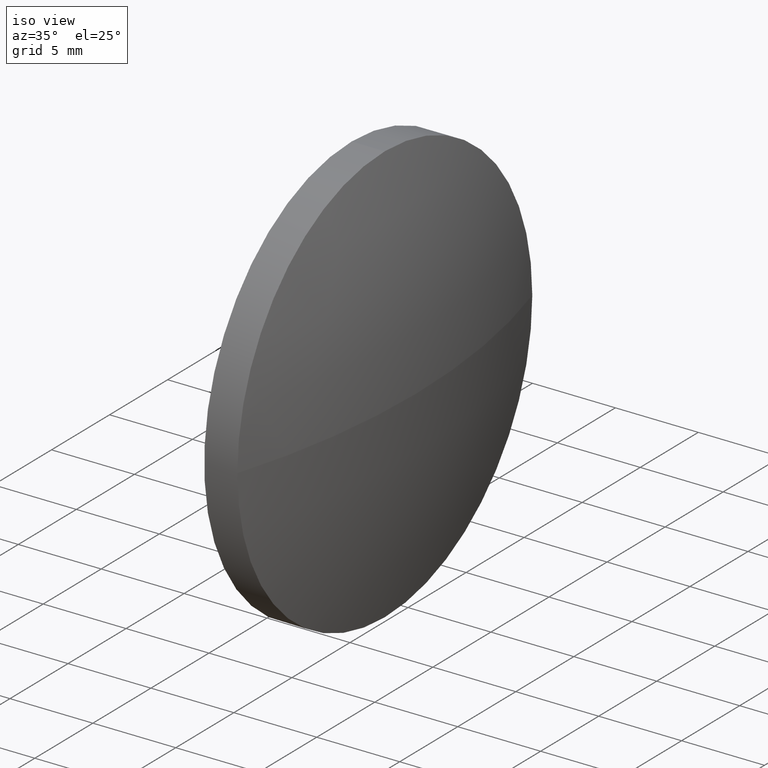
[diagram: clean part render]
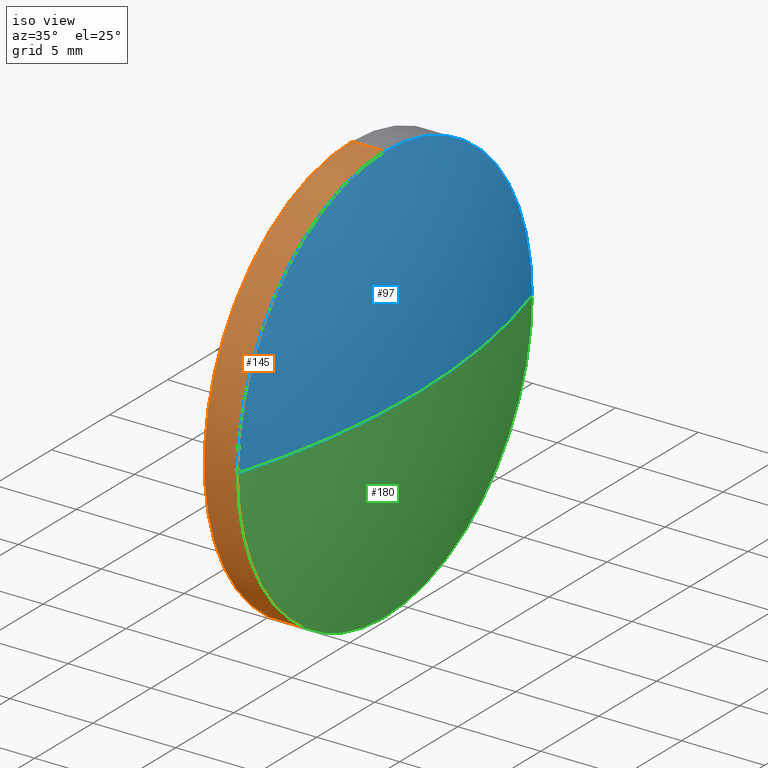
[diagram: same view with three faces highlighted in distinct colors, each labeled with its STEP entity id]
A machine part, iso view with three faces highlighted in distinct colors.
Their STEP definitions:

[orange] entity #145 — the highlighted cylindrical surface (partial cylindrical patch) has radius 12.7 mm, axis along (-1, -0, -0).
#13 = VERTEX_POINT ( 'NONE', #61 ) ;
#23 = VERTEX_POINT ( 'NONE', #157 ) ;
#26 = CARTESIAN_POINT ( 'NONE',  ( 522.6446326252653300, 102.4595338729133400, -12.70000000000000300 ) ) ;
#30 = CARTESIAN_POINT ( 'NONE',  ( 528.3828506609415900, 102.4595338729133400, 0.0000000000000000000 ) ) ;
#35 = DIRECTION ( 'NONE',  ( 0.0000000000000000000, 0.0000000000000000000, 1.000000000000000000 ) ) ;
#39 = VECTOR ( 'NONE', #123, 1000.000000000000000 ) ;
#55 = VERTEX_POINT ( 'NONE', #105 ) ;
#58 = CYLINDRICAL_SURFACE ( 'NONE', #126, 12.70000000000000300 ) ;
#59 = ORIENTED_EDGE ( 'NONE', *, *, #77, .F. ) ;
#61 = CARTESIAN_POINT ( 'NONE',  ( 530.3828506609415900, 89.75953387291345100, 0.0000000000000000000 ) ) ;
#65 = AXIS2_PLACEMENT_3D ( 'NONE', #30, #68, #35 ) ;
#66 = CARTESIAN_POINT ( 'NONE',  ( 530.3828506609415900, 102.4595338729133400, 0.0000000000000000000 ) ) ;
#68 = DIRECTION ( 'NONE',  ( -1.000000000000000000, -0.0000000000000000000, -0.0000000000000000000 ) ) ;
#74 = ORIENTED_EDGE ( 'NONE', *, *, #175, .T. ) ;
#77 = EDGE_CURVE ( 'NONE', #23, #183, #144, .T. ) ;
#83 = CARTESIAN_POINT ( 'NONE',  ( 528.3828506609415900, 102.4595338729133400, 12.70000000000000300 ) ) ;
#87 = CIRCLE ( 'NONE', #114, 12.70000000000000300 ) ;
#88 = EDGE_CURVE ( 'NONE', #55, #161, #130, .T. ) ;
#95 = DIRECTION ( 'NONE',  ( -1.000000000000000000, -0.0000000000000000000, -0.0000000000000000000 ) ) ;
#105 = CARTESIAN_POINT ( 'NONE',  ( 530.3828506609415900, 102.4595338729133400, 12.70000000000000300 ) ) ;
#109 = DIRECTION ( 'NONE',  ( 0.0000000000000000000, 0.0000000000000000000, 1.000000000000000000 ) ) ;
#112 = CIRCLE ( 'NONE', #65, 12.70000000000000300 ) ;
#114 = AXIS2_PLACEMENT_3D ( 'NONE', #66, #176, #139 ) ;
#123 = DIRECTION ( 'NONE',  ( -1.000000000000000000, -0.0000000000000000000, -0.0000000000000000000 ) ) ;
#126 = AXIS2_PLACEMENT_3D ( 'NONE', #135, #150, #137 ) ;
#130 = LINE ( 'NONE', #132, #39 ) ;
#132 = CARTESIAN_POINT ( 'NONE',  ( 522.6446326252653300, 102.4595338729133400, 12.70000000000000300 ) ) ;
#133 = DIRECTION ( 'NONE',  ( -1.000000000000000000, -0.0000000000000000000, -0.0000000000000000000 ) ) ;
#135 = CARTESIAN_POINT ( 'NONE',  ( 522.6446326252653300, 102.4595338729133400, 0.0000000000000000000 ) ) ;
#137 = DIRECTION ( 'NONE',  ( 0.0000000000000000000, 0.0000000000000000000, 1.000000000000000000 ) ) ;
#138 = AXIS2_PLACEMENT_3D ( 'NONE', #177, #95, #109 ) ;
#139 = DIRECTION ( 'NONE',  ( 0.0000000000000000000, 0.0000000000000000000, 1.000000000000000000 ) ) ;
#141 = ORIENTED_EDGE ( 'NONE', *, *, #88, .T. ) ;
#144 = LINE ( 'NONE', #26, #168 ) ;
#145 = ADVANCED_FACE ( 'NONE', ( #185 ), #58, .T. ) ;
#146 = ORIENTED_EDGE ( 'NONE', *, *, #169, .T. ) ;
#150 = DIRECTION ( 'NONE',  ( -1.000000000000000000, -0.0000000000000000000, -0.0000000000000000000 ) ) ;
#152 = EDGE_CURVE ( 'NONE', #183, #161, #112, .T. ) ;
#157 = CARTESIAN_POINT ( 'NONE',  ( 530.3828506609415900, 102.4595338729133400, -12.70000000000000300 ) ) ;
#158 = CIRCLE ( 'NONE', #138, 12.70000000000000300 ) ;
#161 = VERTEX_POINT ( 'NONE', #83 ) ;
#163 = CARTESIAN_POINT ( 'NONE',  ( 528.3828506609415900, 102.4595338729133400, -12.70000000000000300 ) ) ;
#165 = EDGE_LOOP ( 'NONE', ( #59, #74, #146, #141, #166 ) ) ;
#166 = ORIENTED_EDGE ( 'NONE', *, *, #152, .F. ) ;
#168 = VECTOR ( 'NONE', #133, 1000.000000000000000 ) ;
#169 = EDGE_CURVE ( 'NONE', #13, #55, #87, .T. ) ;
#175 = EDGE_CURVE ( 'NONE', #23, #13, #158, .T. ) ;
#176 = DIRECTION ( 'NONE',  ( -1.000000000000000000, -0.0000000000000000000, -0.0000000000000000000 ) ) ;
#177 = CARTESIAN_POINT ( 'NONE',  ( 530.3828506609415900, 102.4595338729133400, 0.0000000000000000000 ) ) ;
#183 = VERTEX_POINT ( 'NONE', #163 ) ;
#185 = FACE_OUTER_BOUND ( 'NONE', #165, .T. ) ;

[blue] entity #97 — the highlighted spherical surface has radius 43.3947 mm.
#13 = VERTEX_POINT ( 'NONE', #61 ) ;
#18 = CARTESIAN_POINT ( 'NONE',  ( 488.8881138188364700, 102.4595338729135000, 0.0000000000000000000 ) ) ;
#27 = CARTESIAN_POINT ( 'NONE',  ( 488.8881138188364700, 102.4595338729135000, 0.0000000000000000000 ) ) ;
#28 = DIRECTION ( 'NONE',  ( 0.0000000000000000000, 0.0000000000000000000, 1.000000000000000000 ) ) ;
#36 = CIRCLE ( 'NONE', #48, 43.39473684210512500 ) ;
#38 = DIRECTION ( 'NONE',  ( -1.000000000000000000, 0.0000000000000000000, 0.0000000000000000000 ) ) ;
#47 = VERTEX_POINT ( 'NONE', #122 ) ;
#48 = AXIS2_PLACEMENT_3D ( 'NONE', #49, #107, #81 ) ;
#49 = CARTESIAN_POINT ( 'NONE',  ( 488.8881138188364700, 102.4595338729135000, 0.0000000000000000000 ) ) ;
#51 = SPHERICAL_SURFACE ( 'NONE', #104, 43.39473684210512500 ) ;
#55 = VERTEX_POINT ( 'NONE', #105 ) ;
#60 = EDGE_CURVE ( 'NONE', #55, #47, #110, .T. ) ;
#61 = CARTESIAN_POINT ( 'NONE',  ( 530.3828506609415900, 89.75953387291345100, 0.0000000000000000000 ) ) ;
#66 = CARTESIAN_POINT ( 'NONE',  ( 530.3828506609415900, 102.4595338729133400, 0.0000000000000000000 ) ) ;
#67 = CARTESIAN_POINT ( 'NONE',  ( 532.2828506609415600, 102.4595338729135000, 0.0000000000000000000 ) ) ;
#69 = DIRECTION ( 'NONE',  ( 0.0000000000000000000, 0.0000000000000000000, 1.000000000000000000 ) ) ;
#80 = CARTESIAN_POINT ( 'NONE',  ( 530.3828506609415900, 102.4595338729133400, 0.0000000000000000000 ) ) ;
#81 = DIRECTION ( 'NONE',  ( 0.0000000000000000000, -1.000000000000000000, -1.224646799147353200E-016 ) ) ;
#86 = ORIENTED_EDGE ( 'NONE', *, *, #115, .T. ) ;
#87 = CIRCLE ( 'NONE', #114, 12.70000000000000300 ) ;
#90 = AXIS2_PLACEMENT_3D ( 'NONE', #18, #164, #38 ) ;
#97 = ADVANCED_FACE ( 'NONE', ( #124 ), #51, .T. ) ;
#102 = ORIENTED_EDGE ( 'NONE', *, *, #169, .F. ) ;
#104 = AXIS2_PLACEMENT_3D ( 'NONE', #27, #69, #136 ) ;
#105 = CARTESIAN_POINT ( 'NONE',  ( 530.3828506609415900, 102.4595338729133400, 12.70000000000000300 ) ) ;
#107 = DIRECTION ( 'NONE',  ( 0.0000000000000000000, -1.224646799147353200E-016, 1.000000000000000000 ) ) ;
#110 = CIRCLE ( 'NONE', #129, 12.70000000000000300 ) ;
#114 = AXIS2_PLACEMENT_3D ( 'NONE', #66, #176, #139 ) ;
#115 = EDGE_CURVE ( 'NONE', #154, #47, #36, .T. ) ;
#119 = CIRCLE ( 'NONE', #90, 43.39473684210515400 ) ;
#122 = CARTESIAN_POINT ( 'NONE',  ( 530.3828506609415900, 115.1595338729133900, 1.555301434917125400E-015 ) ) ;
#124 = FACE_OUTER_BOUND ( 'NONE', #155, .T. ) ;
#129 = AXIS2_PLACEMENT_3D ( 'NONE', #80, #172, #28 ) ;
#131 = ORIENTED_EDGE ( 'NONE', *, *, #184, .F. ) ;
#136 = DIRECTION ( 'NONE',  ( 0.0000000000000000000, -1.000000000000000000, 0.0000000000000000000 ) ) ;
#139 = DIRECTION ( 'NONE',  ( 0.0000000000000000000, 0.0000000000000000000, 1.000000000000000000 ) ) ;
#154 = VERTEX_POINT ( 'NONE', #67 ) ;
#155 = EDGE_LOOP ( 'NONE', ( #131, #86, #173, #102 ) ) ;
#164 = DIRECTION ( 'NONE',  ( 0.0000000000000000000, 0.0000000000000000000, -1.000000000000000000 ) ) ;
#169 = EDGE_CURVE ( 'NONE', #13, #55, #87, .T. ) ;
#172 = DIRECTION ( 'NONE',  ( -1.000000000000000000, -0.0000000000000000000, -0.0000000000000000000 ) ) ;
#173 = ORIENTED_EDGE ( 'NONE', *, *, #60, .F. ) ;
#176 = DIRECTION ( 'NONE',  ( -1.000000000000000000, -0.0000000000000000000, -0.0000000000000000000 ) ) ;
#184 = EDGE_CURVE ( 'NONE', #154, #13, #119, .T. ) ;

[green] entity #180 — the highlighted spherical surface has radius 43.3947 mm.
#3 = ORIENTED_EDGE ( 'NONE', *, *, #175, .F. ) ;
#9 = AXIS2_PLACEMENT_3D ( 'NONE', #116, #118, #25 ) ;
#10 = EDGE_LOOP ( 'NONE', ( #57, #22, #3, #113 ) ) ;
#12 = EDGE_CURVE ( 'NONE', #47, #23, #92, .T. ) ;
#13 = VERTEX_POINT ( 'NONE', #61 ) ;
#18 = CARTESIAN_POINT ( 'NONE',  ( 488.8881138188364700, 102.4595338729135000, 0.0000000000000000000 ) ) ;
#22 = ORIENTED_EDGE ( 'NONE', *, *, #184, .T. ) ;
#23 = VERTEX_POINT ( 'NONE', #157 ) ;
#25 = DIRECTION ( 'NONE',  ( 0.0000000000000000000, 0.0000000000000000000, 1.000000000000000000 ) ) ;
#34 = DIRECTION ( 'NONE',  ( 0.0000000000000000000, -1.000000000000000000, 0.0000000000000000000 ) ) ;
#36 = CIRCLE ( 'NONE', #48, 43.39473684210512500 ) ;
#37 = CARTESIAN_POINT ( 'NONE',  ( 488.8881138188364700, 102.4595338729135000, 0.0000000000000000000 ) ) ;
#38 = DIRECTION ( 'NONE',  ( -1.000000000000000000, 0.0000000000000000000, 0.0000000000000000000 ) ) ;
#47 = VERTEX_POINT ( 'NONE', #122 ) ;
#48 = AXIS2_PLACEMENT_3D ( 'NONE', #49, #107, #81 ) ;
#49 = CARTESIAN_POINT ( 'NONE',  ( 488.8881138188364700, 102.4595338729135000, 0.0000000000000000000 ) ) ;
#50 = DIRECTION ( 'NONE',  ( 0.0000000000000000000, 0.0000000000000000000, 1.000000000000000000 ) ) ;
#57 = ORIENTED_EDGE ( 'NONE', *, *, #115, .F. ) ;
#61 = CARTESIAN_POINT ( 'NONE',  ( 530.3828506609415900, 89.75953387291345100, 0.0000000000000000000 ) ) ;
#67 = CARTESIAN_POINT ( 'NONE',  ( 532.2828506609415600, 102.4595338729135000, 0.0000000000000000000 ) ) ;
#75 = SPHERICAL_SURFACE ( 'NONE', #170, 43.39473684210512500 ) ;
#81 = DIRECTION ( 'NONE',  ( 0.0000000000000000000, -1.000000000000000000, -1.224646799147353200E-016 ) ) ;
#90 = AXIS2_PLACEMENT_3D ( 'NONE', #18, #164, #38 ) ;
#92 = CIRCLE ( 'NONE', #9, 12.70000000000000300 ) ;
#95 = DIRECTION ( 'NONE',  ( -1.000000000000000000, -0.0000000000000000000, -0.0000000000000000000 ) ) ;
#107 = DIRECTION ( 'NONE',  ( 0.0000000000000000000, -1.224646799147353200E-016, 1.000000000000000000 ) ) ;
#109 = DIRECTION ( 'NONE',  ( 0.0000000000000000000, 0.0000000000000000000, 1.000000000000000000 ) ) ;
#113 = ORIENTED_EDGE ( 'NONE', *, *, #12, .F. ) ;
#115 = EDGE_CURVE ( 'NONE', #154, #47, #36, .T. ) ;
#116 = CARTESIAN_POINT ( 'NONE',  ( 530.3828506609415900, 102.4595338729133400, 0.0000000000000000000 ) ) ;
#118 = DIRECTION ( 'NONE',  ( -1.000000000000000000, -0.0000000000000000000, -0.0000000000000000000 ) ) ;
#119 = CIRCLE ( 'NONE', #90, 43.39473684210515400 ) ;
#122 = CARTESIAN_POINT ( 'NONE',  ( 530.3828506609415900, 115.1595338729133900, 1.555301434917125400E-015 ) ) ;
#134 = FACE_OUTER_BOUND ( 'NONE', #10, .T. ) ;
#138 = AXIS2_PLACEMENT_3D ( 'NONE', #177, #95, #109 ) ;
#154 = VERTEX_POINT ( 'NONE', #67 ) ;
#157 = CARTESIAN_POINT ( 'NONE',  ( 530.3828506609415900, 102.4595338729133400, -12.70000000000000300 ) ) ;
#158 = CIRCLE ( 'NONE', #138, 12.70000000000000300 ) ;
#164 = DIRECTION ( 'NONE',  ( 0.0000000000000000000, 0.0000000000000000000, -1.000000000000000000 ) ) ;
#170 = AXIS2_PLACEMENT_3D ( 'NONE', #37, #50, #34 ) ;
#175 = EDGE_CURVE ( 'NONE', #23, #13, #158, .T. ) ;
#177 = CARTESIAN_POINT ( 'NONE',  ( 530.3828506609415900, 102.4595338729133400, 0.0000000000000000000 ) ) ;
#180 = ADVANCED_FACE ( 'NONE', ( #134 ), #75, .T. ) ;
#184 = EDGE_CURVE ( 'NONE', #154, #13, #119, .T. ) ;